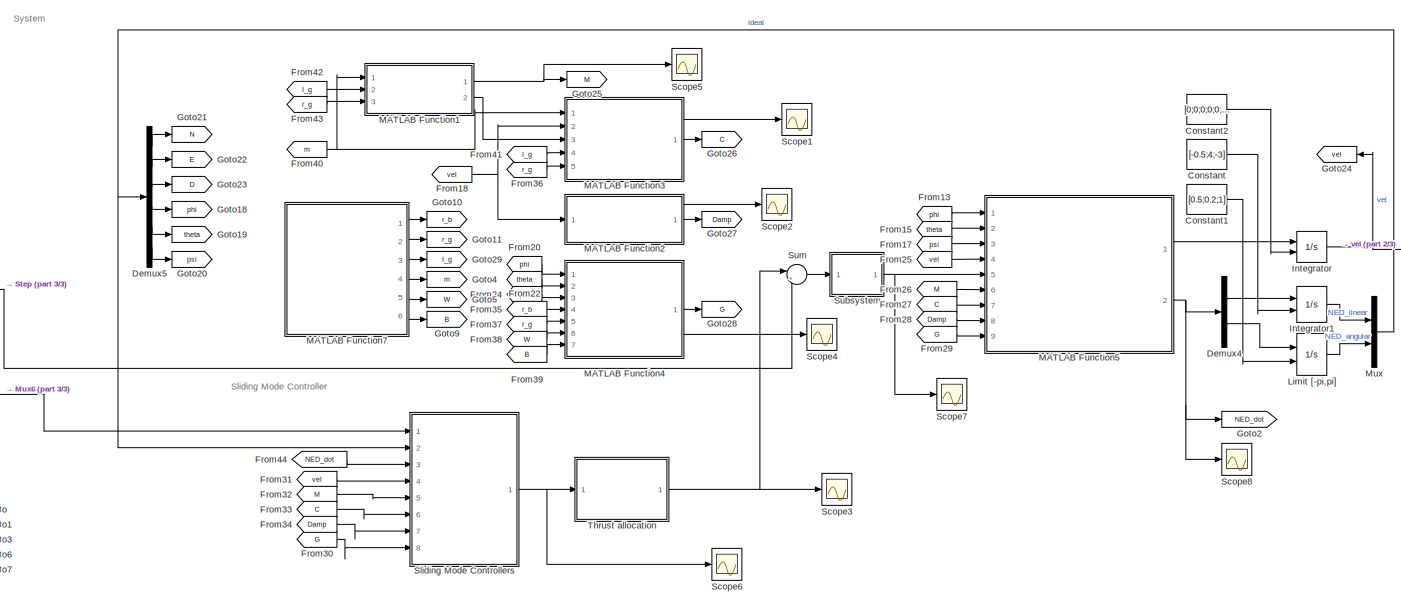
[diagram: root canvas - part 1/3, center side, full height]
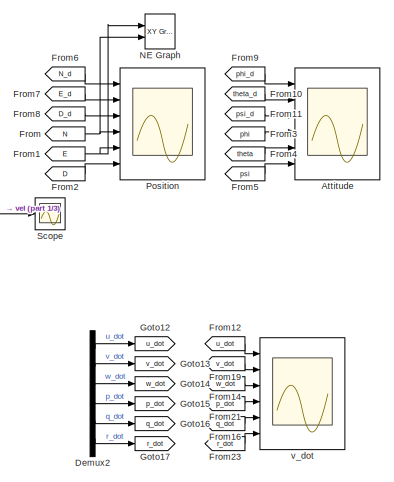
[diagram: root canvas - part 2/3, right side, full height]
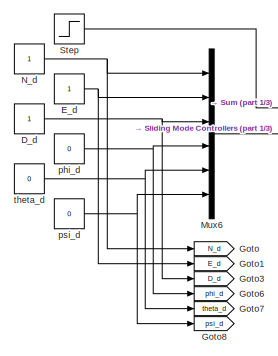
[diagram: root canvas - part 3/3, bottom left region]
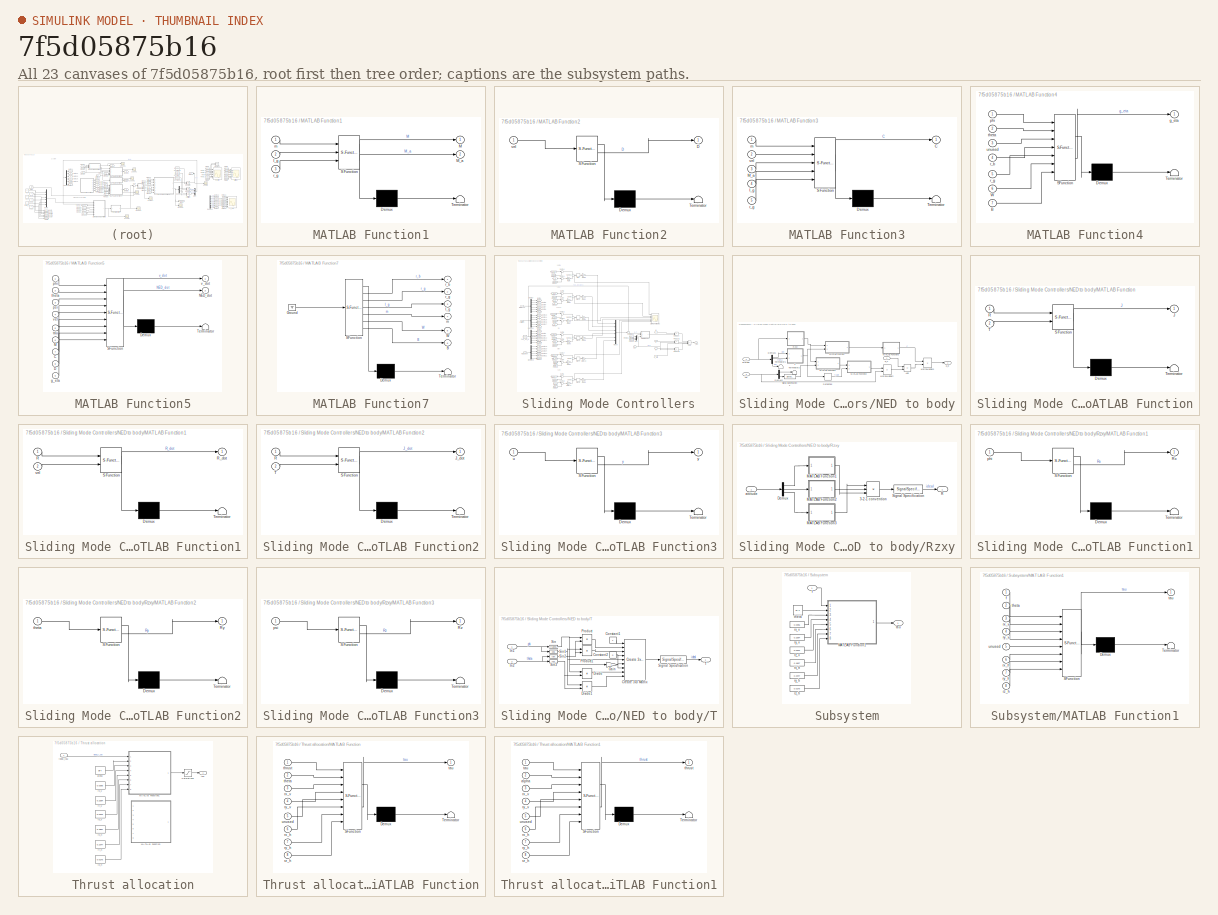
[diagram: thumbnail index - all 23 canvases of the model, root first then tree order]
MODEL slx_7f5d05875b16
KIND model
CONFIG AbsTol = auto
CONFIG EnableMultiTasking = off
CONFIG FixedStep = 0.01
CONFIG MaxStep = auto
CONFIG MinStep = auto
CONFIG RelTol = 1e-3
CONFIG SampleTimeConstraint = Unconstrained
CONFIG Solver = ode1
CONFIG SolverName = ode1
CONFIG StartTime = 0.0
CONFIG StopTime = 50
WORKSPACE source: mxarray member
WORKSPACE kd = 0
WORKSPACE kp = 0
BLOCK [Scope] Attitude
  Floating = off
  NumInputPorts = 6
  Ports = [6]
  ScopeSpecificationString = Simulink.scopes.TimeScopeBlockCfg('CurrentConfiguration', extmgr.ConfigurationSet(extmgr.Configuration('Core','General UI',true),extmgr.Configuration('Core','Source UI',true),extmgr.Configuration('Sources','WiredSimulink',true,'DataLoggingVariableName','ScopeData1'),extmgr.Configuration('Visuals','Time Domain',true,'SerializedDisplays',{struct('MinYLimReal','-1.08781','MaxYLimReal','1.23198','YLab...<+1661ch>
BLOCK [Constant] Constant
  Value = [-0.5;4;-3]
BLOCK [Constant] Constant1
  Value = [0.5;0.2;1]
BLOCK [Constant] Constant2
  Value = [0;0;0;0;0;0]
BLOCK [Constant] D_d
BLOCK [Demux] Demux2
  Commented = on
  Outputs = 6
  Ports = [1, 6]
BLOCK [Demux] Demux4
  Outputs = 2
  Ports = [1, 2]
BLOCK [Demux] Demux5
  Outputs = 6
  Ports = [1, 6]
BLOCK [Constant] E_d
BLOCK [From] From
  GotoTag = N
BLOCK [From] From1
  GotoTag = E
BLOCK [From] From10
  GotoTag = theta_d
BLOCK [From] From11
  GotoTag = psi_d
BLOCK [From] From12
  Commented = on
  GotoTag = u_dot
BLOCK [From] From13
  GotoTag = phi
BLOCK [From] From14
  Commented = on
  GotoTag = w_dot
BLOCK [From] From15
  GotoTag = theta
BLOCK [From] From16
  Commented = on
  GotoTag = q_dot
BLOCK [From] From17
  GotoTag = psi
BLOCK [From] From18
  GotoTag = vel
BLOCK [From] From19
  Commented = on
  GotoTag = v_dot
BLOCK [From] From2
  GotoTag = D
BLOCK [From] From20
  GotoTag = phi
BLOCK [From] From21
  Commented = on
  GotoTag = p_dot
BLOCK [From] From22
  GotoTag = theta
BLOCK [From] From23
  Commented = on
  GotoTag = r_dot
BLOCK [From] From24
  GotoTag = psi
BLOCK [From] From25
  GotoTag = vel
BLOCK [From] From26
  GotoTag = M
BLOCK [From] From27
  GotoTag = C
BLOCK [From] From28
  GotoTag = Damp
BLOCK [From] From29
  GotoTag = G
BLOCK [From] From3
  GotoTag = phi
BLOCK [From] From30
  GotoTag = G
BLOCK [From] From31
  GotoTag = vel
BLOCK [From] From32
  GotoTag = M
BLOCK [From] From33
  GotoTag = C
BLOCK [From] From34
  GotoTag = Damp
BLOCK [From] From35
  GotoTag = r_b
BLOCK [From] From36
  GotoTag = r_g
BLOCK [From] From37
  GotoTag = r_g
BLOCK [From] From38
  GotoTag = W
BLOCK [From] From39
  GotoTag = B
BLOCK [From] From4
  GotoTag = theta
BLOCK [From] From40
  GotoTag = m
BLOCK [From] From41
  GotoTag = I_g
BLOCK [From] From42
  GotoTag = I_g
BLOCK [From] From43
  GotoTag = r_g
BLOCK [From] From44
  GotoTag = NED_dot
BLOCK [From] From5
  GotoTag = psi
BLOCK [From] From6
  GotoTag = N_d
BLOCK [From] From7
  GotoTag = E_d
BLOCK [From] From8
  GotoTag = D_d
BLOCK [From] From9
  GotoTag = phi_d
BLOCK [Goto] Goto
  GotoTag = N_d
BLOCK [Goto] Goto1
  GotoTag = E_d
BLOCK [Goto] Goto10
  GotoTag = r_b
BLOCK [Goto] Goto11
  GotoTag = r_g
BLOCK [Goto] Goto12
  Commented = on
  GotoTag = u_dot
BLOCK [Goto] Goto13
  Commented = on
  GotoTag = v_dot
BLOCK [Goto] Goto14
  Commented = on
  GotoTag = w_dot
BLOCK [Goto] Goto15
  Commented = on
  GotoTag = p_dot
BLOCK [Goto] Goto16
  Commented = on
  GotoTag = q_dot
BLOCK [Goto] Goto17
  Commented = on
  GotoTag = r_dot
BLOCK [Goto] Goto18
  GotoTag = phi
BLOCK [Goto] Goto19
  GotoTag = theta
BLOCK [Goto] Goto2
  GotoTag = NED_dot
BLOCK [Goto] Goto20
  GotoTag = psi
BLOCK [Goto] Goto21
  GotoTag = N
BLOCK [Goto] Goto22
  GotoTag = E
BLOCK [Goto] Goto23
  GotoTag = D
BLOCK [Goto] Goto24
  GotoTag = vel
  NameLocation = top
BLOCK [Goto] Goto25
  GotoTag = M
BLOCK [Goto] Goto26
  GotoTag = C
BLOCK [Goto] Goto27
  GotoTag = Damp
BLOCK [Goto] Goto28
  GotoTag = G
BLOCK [Goto] Goto29
  GotoTag = I_g
BLOCK [Goto] Goto3
  GotoTag = D_d
BLOCK [Goto] Goto4
  GotoTag = m
BLOCK [Goto] Goto5
  GotoTag = W
BLOCK [Goto] Goto6
  GotoTag = phi_d
BLOCK [Goto] Goto7
  GotoTag = theta_d
BLOCK [Goto] Goto8
  GotoTag = psi_d
BLOCK [Goto] Goto9
  GotoTag = B
BLOCK [Integrator] Integrator
  InitialConditionSource = external
  Ports = [2, 1]
BLOCK [Integrator] Integrator1
  InitialConditionSource = external
  Ports = [2, 1]
BLOCK [Integrator] Limit [-pi,pi]
  InitialConditionSource = external
  Ports = [2, 1]
  WrapState = on
BLOCK [SubSystem] MATLAB Function1
  ErrorFcn = Stateflow.Translate.translate
  PermitHierarchicalResolution = ExplicitOnly
  Ports = [3, 2]
  RequestExecContextInheritance = off
  SFBlockType = MATLAB Function
  TreatAsAtomicUnit = on
BLOCK [Demux] MATLAB Function1/ Demux 
  Outputs = 1
  Ports = [1, 1]
BLOCK [S-Function] MATLAB Function1/ SFunction 
  EnableBusSupport = on
  FunctionName = sf_sfun
  PortCounts = [3 3]
  Ports = [3, 3]
  SFcnIsStateOwnerBlock = off
  SFunctionDeploymentMode = off
  Tag = Stateflow S-Function 2
BLOCK [Terminator] MATLAB Function1/ Terminator 
BLOCK [Inport] MATLAB Function1/I_g
  Port = 2
BLOCK [Outport] MATLAB Function1/M
BLOCK [Outport] MATLAB Function1/M_a
  Port = 2
BLOCK [Inport] MATLAB Function1/m
BLOCK [Inport] MATLAB Function1/r_g
  Port = 3
BLOCK [SubSystem] MATLAB Function2
  ErrorFcn = Stateflow.Translate.translate
  PermitHierarchicalResolution = ExplicitOnly
  Ports = [1, 1]
  RequestExecContextInheritance = off
  SFBlockType = MATLAB Function
  TreatAsAtomicUnit = on
BLOCK [Demux] MATLAB Function2/ Demux 
  Outputs = 1
  Ports = [1, 1]
BLOCK [S-Function] MATLAB Function2/ SFunction 
  EnableBusSupport = on
  FunctionName = sf_sfun
  PortCounts = [1 2]
  Ports = [1, 2]
  SFcnIsStateOwnerBlock = off
  SFunctionDeploymentMode = off
  Tag = Stateflow S-Function 12
BLOCK [Terminator] MATLAB Function2/ Terminator 
BLOCK [Outport] MATLAB Function2/D
BLOCK [Inport] MATLAB Function2/vel
BLOCK [SubSystem] MATLAB Function3
  ErrorFcn = Stateflow.Translate.translate
  PermitHierarchicalResolution = ExplicitOnly
  Ports = [5, 1]
  RequestExecContextInheritance = off
  SFBlockType = MATLAB Function
  TreatAsAtomicUnit = on
BLOCK [Demux] MATLAB Function3/ Demux 
  Outputs = 1
  Ports = [1, 1]
BLOCK [S-Function] MATLAB Function3/ SFunction 
  EnableBusSupport = on
  FunctionName = sf_sfun
  PortCounts = [5 2]
  Ports = [5, 2]
  SFcnIsStateOwnerBlock = off
  SFunctionDeploymentMode = off
  Tag = Stateflow S-Function 13
BLOCK [Terminator] MATLAB Function3/ Terminator 
BLOCK [Outport] MATLAB Function3/C
BLOCK [Inport] MATLAB Function3/I_g
  Port = 4
BLOCK [Inport] MATLAB Function3/M_a
  Port = 3
BLOCK [Inport] MATLAB Function3/m
BLOCK [Inport] MATLAB Function3/r_g
  Port = 5
BLOCK [Inport] MATLAB Function3/vel
  Port = 2
BLOCK [SubSystem] MATLAB Function4
  ErrorFcn = Stateflow.Translate.translate
  PermitHierarchicalResolution = ExplicitOnly
  Ports = [7, 1]
  RequestExecContextInheritance = off
  SFBlockType = MATLAB Function
  TreatAsAtomicUnit = on
BLOCK [Demux] MATLAB Function4/ Demux 
  Outputs = 1
  Ports = [1, 1]
BLOCK [S-Function] MATLAB Function4/ SFunction 
  EnableBusSupport = on
  FunctionName = sf_sfun
  PortCounts = [7 2]
  Ports = [7, 2]
  SFcnIsStateOwnerBlock = off
  SFunctionDeploymentMode = off
  Tag = Stateflow S-Function 14
BLOCK [Terminator] MATLAB Function4/ Terminator 
BLOCK [Inport] MATLAB Function4/B
  Port = 7
BLOCK [Inport] MATLAB Function4/W
  Port = 6
BLOCK [Outport] MATLAB Function4/g_eta
BLOCK [Inport] MATLAB Function4/phi
BLOCK [Inport] MATLAB Function4/r_b
  Port = 4
BLOCK [Inport] MATLAB Function4/r_g
  Port = 5
BLOCK [Inport] MATLAB Function4/theta
  Port = 2
BLOCK [Inport] MATLAB Function4/unused
  Port = 3
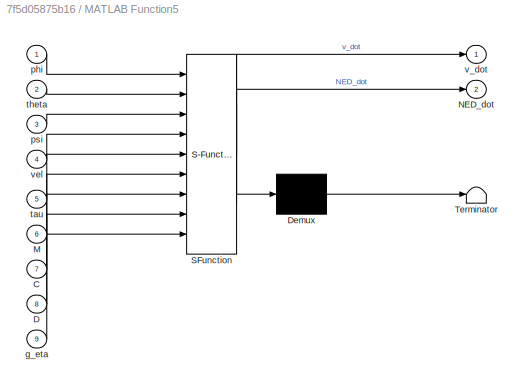
BLOCK [SubSystem] MATLAB Function5
  ErrorFcn = Stateflow.Translate.translate
  PermitHierarchicalResolution = ExplicitOnly
  Ports = [9, 2]
  RequestExecContextInheritance = off
  SFBlockType = MATLAB Function
  TreatAsAtomicUnit = on
BLOCK [Demux] MATLAB Function5/ Demux 
  Outputs = 1
  Ports = [1, 1]
BLOCK [S-Function] MATLAB Function5/ SFunction 
  EnableBusSupport = on
  FunctionName = sf_sfun
  PortCounts = [9 3]
  Ports = [9, 3]
  SFcnIsStateOwnerBlock = off
  SFunctionDeploymentMode = off
  Tag = Stateflow S-Function 15
BLOCK [Terminator] MATLAB Function5/ Terminator 
BLOCK [Inport] MATLAB Function5/C
  Port = 7
BLOCK [Inport] MATLAB Function5/D
  Port = 8
BLOCK [Inport] MATLAB Function5/M
  Port = 6
BLOCK [Outport] MATLAB Function5/NED_dot
  Port = 2
BLOCK [Inport] MATLAB Function5/g_eta
  Port = 9
BLOCK [Inport] MATLAB Function5/phi
BLOCK [Inport] MATLAB Function5/psi
  Port = 3
BLOCK [Inport] MATLAB Function5/tau
  Port = 5
BLOCK [Inport] MATLAB Function5/theta
  Port = 2
BLOCK [Outport] MATLAB Function5/v_dot
BLOCK [Inport] MATLAB Function5/vel
  Port = 4
BLOCK [SubSystem] MATLAB Function7
  ErrorFcn = Stateflow.Translate.translate
  PermitHierarchicalResolution = ExplicitOnly
  Ports = [0, 6]
  RequestExecContextInheritance = off
  SFBlockType = MATLAB Function
  TreatAsAtomicUnit = on
BLOCK [Demux] MATLAB Function7/ Demux 
  Outputs = 1
  Ports = [1, 1]
BLOCK [Ground] MATLAB Function7/ Ground 
BLOCK [S-Function] MATLAB Function7/ SFunction 
  EnableBusSupport = on
  FunctionName = sf_sfun
  PortCounts = [1 7]
  Ports = [1, 7]
  SFcnIsStateOwnerBlock = off
  SFunctionDeploymentMode = off
  Tag = Stateflow S-Function 17
BLOCK [Terminator] MATLAB Function7/ Terminator 
BLOCK [Outport] MATLAB Function7/B
  Port = 6
BLOCK [Outport] MATLAB Function7/I_g
  Port = 3
BLOCK [Outport] MATLAB Function7/W
  Port = 5
BLOCK [Outport] MATLAB Function7/m
  Port = 4
BLOCK [Outport] MATLAB Function7/r_b
BLOCK [Outport] MATLAB Function7/r_g
  Port = 2
BLOCK [Mux] Mux
  DisplayOption = bar
  Inputs = 2
  Ports = [2, 1]
BLOCK [Mux] Mux6
  DisplayOption = bar
  Inputs = 6
  Ports = [6, 1]
BLOCK [Reference] NE Graph  REF=simulink/Sinks/XY Graph
  Ports = [2]
  SourceBlock = simulink/Sinks/XY Graph
  SourceProductBaseCode = SL
  SourceType = XY scope.
BLOCK [Constant] N_d
BLOCK [Scope] Position
  Floating = off
  NumInputPorts = 6
  Ports = [6]
  ScopeSpecificationString = Simulink.scopes.TimeScopeBlockCfg('CurrentConfiguration', extmgr.ConfigurationSet(extmgr.Configuration('Core','General UI',true),extmgr.Configuration('Core','Source UI',true),extmgr.Configuration('Sources','WiredSimulink',true),extmgr.Configuration('Visuals','Time Domain',true,'SerializedDisplays',{struct('MinYLimReal','-3.875','MaxYLimReal','4.875','YLabelReal','','MinYLimMag','0.00000','MaxYLimM...<+1569ch>
BLOCK [Scope] Scope
  Floating = off
  NumInputPorts = 1
  Ports = [1]
  ScopeSpecificationString = Simulink.scopes.TimeScopeBlockCfg('CurrentConfiguration', extmgr.ConfigurationSet(extmgr.Configuration('Core','General UI',true),extmgr.Configuration('Core','Source UI',true),extmgr.Configuration('Sources','WiredSimulink',true,'DataLoggingVariableName','ScopeData1'),extmgr.Configuration('Visuals','Time Domain',true,'SerializedDisplays',{struct('MinYLimReal','-3.38519','MaxYLimReal','2.94263','YLab...<+1692ch>
BLOCK [Scope] Scope1
  Floating = off
  NumInputPorts = 1
  Ports = [1]
  ScopeSpecificationString = Simulink.scopes.TimeScopeBlockCfg('CurrentConfiguration', extmgr.ConfigurationSet(extmgr.Configuration('Core','General UI',true),extmgr.Configuration('Core','Source UI',true),extmgr.Configuration('Sources','WiredSimulink',true,'DataLoggingVariableName','ScopeData1'),extmgr.Configuration('Visuals','Time Domain',true,'SerializedDisplays',{struct('MinYLimReal','-9.38603','MaxYLimReal','9.38603','YLab...<+2198ch>
BLOCK [Scope] Scope2
  Floating = off
  NumInputPorts = 1
  Ports = [1]
  ScopeSpecificationString = Simulink.scopes.TimeScopeBlockCfg('CurrentConfiguration', extmgr.ConfigurationSet(extmgr.Configuration('Core','General UI',true),extmgr.Configuration('Core','Source UI',true),extmgr.Configuration('Sources','WiredSimulink',true,'DataLoggingVariableName','ScopeData2'),extmgr.Configuration('Visuals','Time Domain',true,'SerializedDisplays',{struct('MinYLimReal','-13.16749','MaxYLimReal','117.98944','Y...<+3000ch>
BLOCK [Scope] Scope3
  Floating = off
  NumInputPorts = 1
  Ports = [1]
  ScopeSpecificationString = Simulink.scopes.TimeScopeBlockCfg('CurrentConfiguration', extmgr.ConfigurationSet(extmgr.Configuration('Core','General UI',true),extmgr.Configuration('Core','Source UI',true),extmgr.Configuration('Sources','WiredSimulink',true,'DataLoggingVariableName','ScopeData1'),extmgr.Configuration('Visuals','Time Domain',true,'SerializedDisplays',{struct('MinYLimReal','-43.75','MaxYLimReal','43.75','YLabelRe...<+1599ch>
BLOCK [Scope] Scope4
  Floating = off
  NumInputPorts = 1
  Ports = [1]
  ScopeSpecificationString = Simulink.scopes.TimeScopeBlockCfg('CurrentConfiguration', extmgr.ConfigurationSet(extmgr.Configuration('Core','General UI',true),extmgr.Configuration('Core','Source UI',true),extmgr.Configuration('Sources','WiredSimulink',true,'DataLoggingVariableName','ScopeData3'),extmgr.Configuration('Visuals','Time Domain',true,'SerializedDisplays',{struct('MinYLimReal','-22.87254','MaxYLimReal','15.79147','YL...<+1544ch>
BLOCK [Scope] Scope5
  Floating = off
  NumInputPorts = 1
  Ports = [1]
  ScopeSpecificationString = Simulink.scopes.TimeScopeBlockCfg('CurrentConfiguration', extmgr.ConfigurationSet(extmgr.Configuration('Core','General UI',true),extmgr.Configuration('Core','Source UI',true),extmgr.Configuration('Sources','WiredSimulink',true,'DataLoggingVariableName','ScopeData4'),extmgr.Configuration('Visuals','Time Domain',true,'SerializedDisplays',{struct('MinYLimReal','-7.41496','MaxYLimReal','66.73277','YLa...<+2241ch>
BLOCK [Scope] Scope6
  Floating = off
  NumInputPorts = 1
  Ports = [1]
  ScopeSpecificationString = Simulink.scopes.TimeScopeBlockCfg('CurrentConfiguration', extmgr.ConfigurationSet(extmgr.Configuration('Core','General UI',true),extmgr.Configuration('Core','Source UI',true),extmgr.Configuration('Sources','WiredSimulink',true,'DataLoggingVariableName','ScopeData1'),extmgr.Configuration('Visuals','Time Domain',true,'SerializedDisplays',{struct('MinYLimReal','-429.66145','MaxYLimReal','437.22498','...<+1756ch>
BLOCK [Scope] Scope7
  Floating = off
  NumInputPorts = 1
  Ports = [1]
  ScopeSpecificationString = Simulink.scopes.TimeScopeBlockCfg('CurrentConfiguration', extmgr.ConfigurationSet(extmgr.Configuration('Core','General UI',true),extmgr.Configuration('Core','Source UI',true),extmgr.Configuration('Sources','WiredSimulink',true,'DataLoggingVariableName','ScopeData2'),extmgr.Configuration('Visuals','Time Domain',true,'SerializedDisplays',{struct('MinYLimReal','-123.74369','MaxYLimReal','123.74369','...<+1666ch>
BLOCK [Scope] Scope8
  Floating = off
  NumInputPorts = 1
  Ports = [1]
  ScopeSpecificationString = Simulink.scopes.TimeScopeBlockCfg('CurrentConfiguration', extmgr.ConfigurationSet(extmgr.Configuration('Core','General UI',true),extmgr.Configuration('Core','Source UI',true),extmgr.Configuration('Sources','WiredSimulink',true,'DataLoggingVariableName','ScopeData3'),extmgr.Configuration('Visuals','Time Domain',true,'SerializedDisplays',{struct('MinYLimReal','-3.39212','MaxYLimReal','3.00532','YLab...<+1743ch>
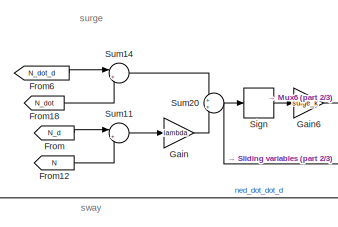
[diagram: Sliding Mode Controllers - part 1/3, top left region]
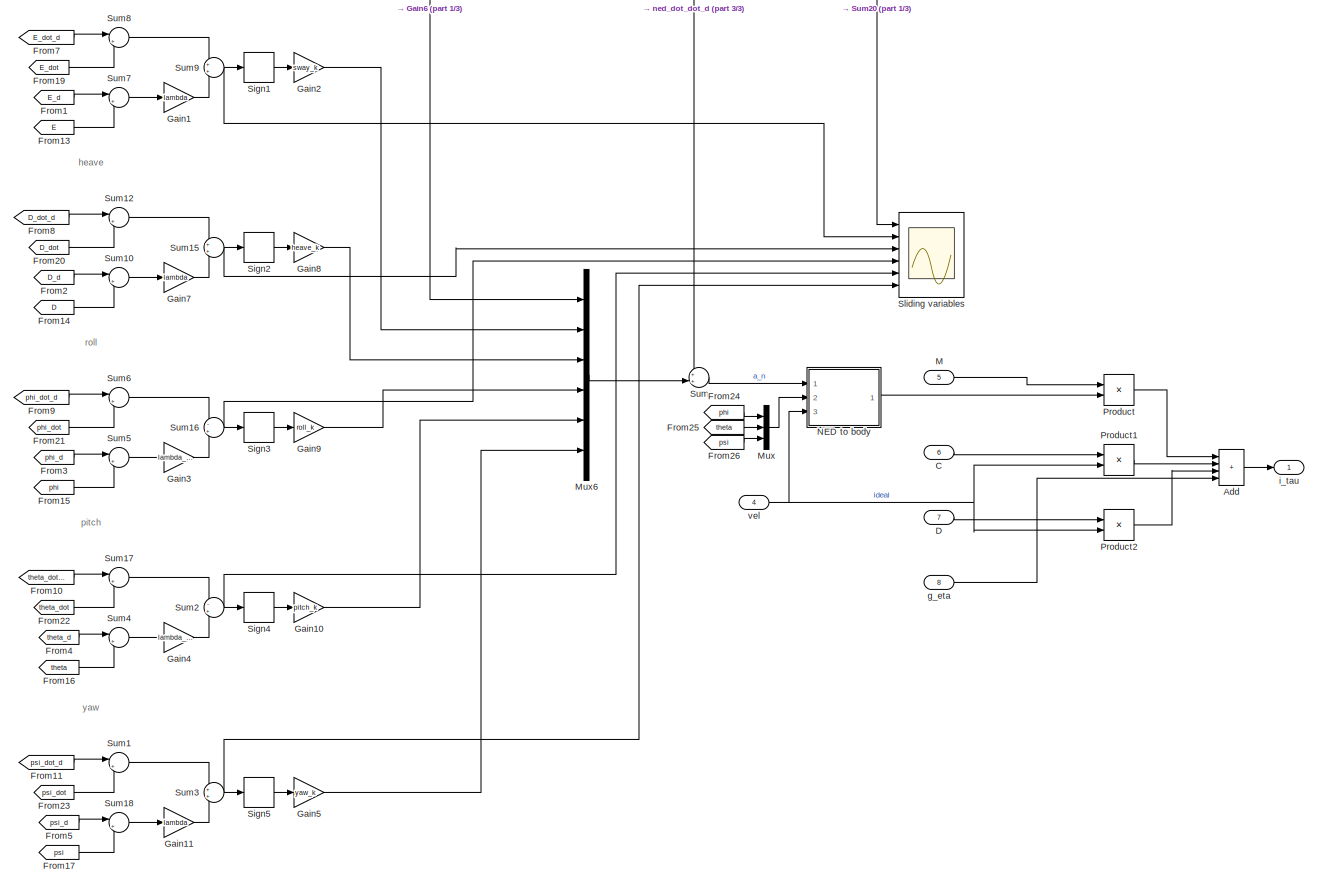
[diagram: Sliding Mode Controllers - part 2/3, most of the canvas]
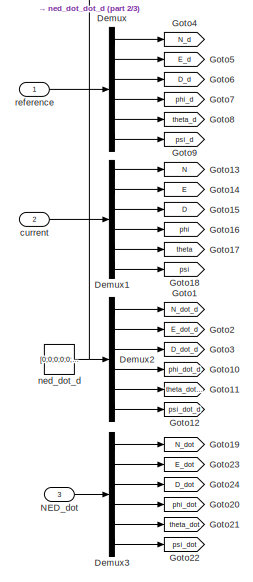
[diagram: Sliding Mode Controllers - part 3/3, middle left region]
BLOCK [SubSystem] Sliding Mode Controllers
  Ports = [8, 1]
  RequestExecContextInheritance = off
BLOCK [Sum] Sliding Mode Controllers/Add
  IconShape = rectangular
  Inputs = 4
  Ports = [4, 1]
BLOCK [Inport] Sliding Mode Controllers/C
  Port = 6
BLOCK [Inport] Sliding Mode Controllers/D
  Port = 7
BLOCK [Demux] Sliding Mode Controllers/Demux
  Outputs = 6
  Ports = [1, 6]
BLOCK [Demux] Sliding Mode Controllers/Demux1
  Outputs = 6
  Ports = [1, 6]
BLOCK [Demux] Sliding Mode Controllers/Demux2
  Outputs = 6
  Ports = [1, 6]
BLOCK [Demux] Sliding Mode Controllers/Demux3
  Outputs = 6
  Ports = [1, 6]
BLOCK [From] Sliding Mode Controllers/From
  GotoTag = N_d
BLOCK [From] Sliding Mode Controllers/From1
  GotoTag = E_d
BLOCK [From] Sliding Mode Controllers/From10
  GotoTag = theta_dot_d
BLOCK [From] Sliding Mode Controllers/From11
  GotoTag = psi_dot_d
BLOCK [From] Sliding Mode Controllers/From12
  GotoTag = N
BLOCK [From] Sliding Mode Controllers/From13
  GotoTag = E
BLOCK [From] Sliding Mode Controllers/From14
  GotoTag = D
BLOCK [From] Sliding Mode Controllers/From15
  GotoTag = phi
BLOCK [From] Sliding Mode Controllers/From16
  GotoTag = theta
BLOCK [From] Sliding Mode Controllers/From17
  GotoTag = psi
BLOCK [From] Sliding Mode Controllers/From18
  GotoTag = N_dot
BLOCK [From] Sliding Mode Controllers/From19
  GotoTag = E_dot
BLOCK [From] Sliding Mode Controllers/From2
  GotoTag = D_d
BLOCK [From] Sliding Mode Controllers/From20
  GotoTag = D_dot
BLOCK [From] Sliding Mode Controllers/From21
  GotoTag = phi_dot
BLOCK [From] Sliding Mode Controllers/From22
  GotoTag = theta_dot
BLOCK [From] Sliding Mode Controllers/From23
  GotoTag = psi_dot
BLOCK [From] Sliding Mode Controllers/From24
  GotoTag = phi
BLOCK [From] Sliding Mode Controllers/From25
  GotoTag = theta
BLOCK [From] Sliding Mode Controllers/From26
  GotoTag = psi
BLOCK [From] Sliding Mode Controllers/From3
  GotoTag = phi_d
BLOCK [From] Sliding Mode Controllers/From4
  GotoTag = theta_d
BLOCK [From] Sliding Mode Controllers/From5
  GotoTag = psi_d
BLOCK [From] Sliding Mode Controllers/From6
  GotoTag = N_dot_d
BLOCK [From] Sliding Mode Controllers/From7
  GotoTag = E_dot_d
BLOCK [From] Sliding Mode Controllers/From8
  GotoTag = D_dot_d
BLOCK [From] Sliding Mode Controllers/From9
  GotoTag = phi_dot_d
BLOCK [Gain] Sliding Mode Controllers/Gain
  Gain = lambda
BLOCK [Gain] Sliding Mode Controllers/Gain1
  Gain = lambda
BLOCK [Gain] Sliding Mode Controllers/Gain10
  Gain = pitch_k
BLOCK [Gain] Sliding Mode Controllers/Gain11
  Gain = lambda
BLOCK [Gain] Sliding Mode Controllers/Gain2
  Gain = sway_k
BLOCK [Gain] Sliding Mode Controllers/Gain3
  Gain = lambda_roll
BLOCK [Gain] Sliding Mode Controllers/Gain4
  Gain = lambda_pitch
BLOCK [Gain] Sliding Mode Controllers/Gain5
  Gain = yaw_k
BLOCK [Gain] Sliding Mode Controllers/Gain6
  Gain = surge_k
BLOCK [Gain] Sliding Mode Controllers/Gain7
  Gain = lambda
BLOCK [Gain] Sliding Mode Controllers/Gain8
  Gain = heave_k
BLOCK [Gain] Sliding Mode Controllers/Gain9
  Gain = roll_k
BLOCK [Goto] Sliding Mode Controllers/Goto1
  GotoTag = N_dot_d
BLOCK [Goto] Sliding Mode Controllers/Goto10
  GotoTag = phi_dot_d
BLOCK [Goto] Sliding Mode Controllers/Goto11
  GotoTag = theta_dot_d
BLOCK [Goto] Sliding Mode Controllers/Goto12
  GotoTag = psi_dot_d
BLOCK [Goto] Sliding Mode Controllers/Goto13
  GotoTag = N
BLOCK [Goto] Sliding Mode Controllers/Goto14
  GotoTag = E
BLOCK [Goto] Sliding Mode Controllers/Goto15
  GotoTag = D
BLOCK [Goto] Sliding Mode Controllers/Goto16
  GotoTag = phi
BLOCK [Goto] Sliding Mode Controllers/Goto17
  GotoTag = theta
BLOCK [Goto] Sliding Mode Controllers/Goto18
  GotoTag = psi
BLOCK [Goto] Sliding Mode Controllers/Goto19
  GotoTag = N_dot
BLOCK [Goto] Sliding Mode Controllers/Goto2
  GotoTag = E_dot_d
BLOCK [Goto] Sliding Mode Controllers/Goto20
  GotoTag = phi_dot
BLOCK [Goto] Sliding Mode Controllers/Goto21
  GotoTag = theta_dot
BLOCK [Goto] Sliding Mode Controllers/Goto22
  GotoTag = psi_dot
BLOCK [Goto] Sliding Mode Controllers/Goto23
  GotoTag = E_dot
BLOCK [Goto] Sliding Mode Controllers/Goto24
  GotoTag = D_dot
BLOCK [Goto] Sliding Mode Controllers/Goto3
  GotoTag = D_dot_d
BLOCK [Goto] Sliding Mode Controllers/Goto4
  GotoTag = N_d
BLOCK [Goto] Sliding Mode Controllers/Goto5
  GotoTag = E_d
BLOCK [Goto] Sliding Mode Controllers/Goto6
  GotoTag = D_d
BLOCK [Goto] Sliding Mode Controllers/Goto7
  GotoTag = phi_d
BLOCK [Goto] Sliding Mode Controllers/Goto8
  GotoTag = theta_d
BLOCK [Goto] Sliding Mode Controllers/Goto9
  GotoTag = psi_d
BLOCK [Inport] Sliding Mode Controllers/M
  Port = 5
BLOCK [Mux] Sliding Mode Controllers/Mux
  DisplayOption = bar
  Inputs = 3
  Ports = [3, 1]
BLOCK [Mux] Sliding Mode Controllers/Mux6
  DisplayOption = bar
  Inputs = 6
  Ports = [6, 1]
BLOCK [SubSystem] Sliding Mode Controllers/NED to body
  Ports = [3, 1]
  RequestExecContextInheritance = off
BLOCK [Sum] Sliding Mode Controllers/NED to body/Add
  IconShape = rectangular
  Inputs = +-
  Ports = [2, 1]
BLOCK [Demux] Sliding Mode Controllers/NED to body/Demux1
  Outputs = 3
  Ports = [1, 3]
BLOCK [Demux] Sliding Mode Controllers/NED to body/Demux2
  Outputs = 2
  Ports = [1, 2]
BLOCK [Derivative] Sliding Mode Controllers/NED to body/Derivative
BLOCK [SubSystem] Sliding Mode Controllers/NED to body/MATLAB Function
  ErrorFcn = Stateflow.Translate.translate
  PermitHierarchicalResolution = ExplicitOnly
  Ports = [2, 1]
  RequestExecContextInheritance = off
  SFBlockType = MATLAB Function
  TreatAsAtomicUnit = on
BLOCK [Demux] Sliding Mode Controllers/NED to body/MATLAB Function/ Demux 
  Outputs = 1
  Ports = [1, 1]
BLOCK [S-Function] Sliding Mode Controllers/NED to body/MATLAB Function/ SFunction 
  EnableBusSupport = on
  FunctionName = sf_sfun
  PortCounts = [2 2]
  Ports = [2, 2]
  SFcnIsStateOwnerBlock = off
  SFunctionDeploymentMode = off
  Tag = Stateflow S-Function 4
BLOCK [Terminator] Sliding Mode Controllers/NED to body/MATLAB Function/ Terminator 
BLOCK [Outport] Sliding Mode Controllers/NED to body/MATLAB Function/J
BLOCK [Inport] Sliding Mode Controllers/NED to body/MATLAB Function/R
BLOCK [Inport] Sliding Mode Controllers/NED to body/MATLAB Function/T
  Port = 2
BLOCK [SubSystem] Sliding Mode Controllers/NED to body/MATLAB Function1
  ErrorFcn = Stateflow.Translate.translate
  PermitHierarchicalResolution = ExplicitOnly
  Ports = [2, 1]
  RequestExecContextInheritance = off
  SFBlockType = MATLAB Function
  TreatAsAtomicUnit = on
BLOCK [Demux] Sliding Mode Controllers/NED to body/MATLAB Function1/ Demux 
  Outputs = 1
  Ports = [1, 1]
BLOCK [S-Function] Sliding Mode Controllers/NED to body/MATLAB Function1/ SFunction 
  EnableBusSupport = on
  FunctionName = sf_sfun
  PortCounts = [2 2]
  Ports = [2, 2]
  SFcnIsStateOwnerBlock = off
  SFunctionDeploymentMode = off
  Tag = Stateflow S-Function 8
BLOCK [Terminator] Sliding Mode Controllers/NED to body/MATLAB Function1/ Terminator 
BLOCK [Inport] Sliding Mode Controllers/NED to body/MATLAB Function1/R
BLOCK [Outport] Sliding Mode Controllers/NED to body/MATLAB Function1/R_dot
BLOCK [Inport] Sliding Mode Controllers/NED to body/MATLAB Function1/vel
  Port = 2
BLOCK [SubSystem] Sliding Mode Controllers/NED to body/MATLAB Function2
  ErrorFcn = Stateflow.Translate.translate
  PermitHierarchicalResolution = ExplicitOnly
  Ports = [2, 1]
  RequestExecContextInheritance = off
  SFBlockType = MATLAB Function
  TreatAsAtomicUnit = on
BLOCK [Demux] Sliding Mode Controllers/NED to body/MATLAB Function2/ Demux 
  Outputs = 1
  Ports = [1, 1]
BLOCK [S-Function] Sliding Mode Controllers/NED to body/MATLAB Function2/ SFunction 
  EnableBusSupport = on
  FunctionName = sf_sfun
  PortCounts = [2 2]
  Ports = [2, 2]
  SFcnIsStateOwnerBlock = off
  SFunctionDeploymentMode = off
  Tag = Stateflow S-Function 9
BLOCK [Terminator] Sliding Mode Controllers/NED to body/MATLAB Function2/ Terminator 
BLOCK [Outport] Sliding Mode Controllers/NED to body/MATLAB Function2/J_dot
BLOCK [Inport] Sliding Mode Controllers/NED to body/MATLAB Function2/R
BLOCK [Inport] Sliding Mode Controllers/NED to body/MATLAB Function2/T
  Port = 2
BLOCK [SubSystem] Sliding Mode Controllers/NED to body/MATLAB Function3
  ErrorFcn = Stateflow.Translate.translate
  PermitHierarchicalResolution = ExplicitOnly
  Ports = [1, 1]
  RequestExecContextInheritance = off
  SFBlockType = MATLAB Function
  TreatAsAtomicUnit = on
BLOCK [Demux] Sliding Mode Controllers/NED to body/MATLAB Function3/ Demux 
  Outputs = 1
  Ports = [1, 1]
BLOCK [S-Function] Sliding Mode Controllers/NED to body/MATLAB Function3/ SFunction 
  EnableBusSupport = on
  FunctionName = sf_sfun
  PortCounts = [1 2]
  Ports = [1, 2]
  SFcnIsStateOwnerBlock = off
  SFunctionDeploymentMode = off
  Tag = Stateflow S-Function 10
BLOCK [Terminator] Sliding Mode Controllers/NED to body/MATLAB Function3/ Terminator 
BLOCK [Inport] Sliding Mode Controllers/NED to body/MATLAB Function3/u
BLOCK [Outport] Sliding Mode Controllers/NED to body/MATLAB Function3/y
BLOCK [Product] Sliding Mode Controllers/NED to body/MatrixMultiply2
  Multiplication = Matrix(*)
  Ports = [2, 1]
BLOCK [Product] Sliding Mode Controllers/NED to body/MatrixMultiply3
  Multiplication = Matrix(*)
  Ports = [2, 1]
BLOCK [SubSystem] Sliding Mode Controllers/NED to body/Rzxy
  Ports = [1, 1]
  RequestExecContextInheritance = off
BLOCK [Product] Sliding Mode Controllers/NED to body/Rzxy/3-2-1 convention
  Inputs = 3
  Multiplication = Matrix(*)
  Ports = [3, 1]
BLOCK [Demux] Sliding Mode Controllers/NED to body/Rzxy/Demux
  Outputs = 3
  Ports = [1, 3]
BLOCK [SubSystem] Sliding Mode Controllers/NED to body/Rzxy/MATLAB Function1
  ErrorFcn = Stateflow.Translate.translate
  PermitHierarchicalResolution = ExplicitOnly
  Ports = [1, 1]
  RequestExecContextInheritance = off
  SFBlockType = MATLAB Function
  TreatAsAtomicUnit = on
BLOCK [Demux] Sliding Mode Controllers/NED to body/Rzxy/MATLAB Function1/ Demux 
  Outputs = 1
  Ports = [1, 1]
BLOCK [S-Function] Sliding Mode Controllers/NED to body/Rzxy/MATLAB Function1/ SFunction 
  EnableBusSupport = on
  FunctionName = sf_sfun
  PortCounts = [1 2]
  Ports = [1, 2]
  SFcnIsStateOwnerBlock = off
  SFunctionDeploymentMode = off
  Tag = Stateflow S-Function 1
BLOCK [Terminator] Sliding Mode Controllers/NED to body/Rzxy/MATLAB Function1/ Terminator 
BLOCK [Outport] Sliding Mode Controllers/NED to body/Rzxy/MATLAB Function1/Rx
BLOCK [Inport] Sliding Mode Controllers/NED to body/Rzxy/MATLAB Function1/phi
BLOCK [SubSystem] Sliding Mode Controllers/NED to body/Rzxy/MATLAB Function2
  ErrorFcn = Stateflow.Translate.translate
  PermitHierarchicalResolution = ExplicitOnly
  Ports = [1, 1]
  RequestExecContextInheritance = off
  SFBlockType = MATLAB Function
  TreatAsAtomicUnit = on
BLOCK [Demux] Sliding Mode Controllers/NED to body/Rzxy/MATLAB Function2/ Demux 
  Outputs = 1
  Ports = [1, 1]
BLOCK [S-Function] Sliding Mode Controllers/NED to body/Rzxy/MATLAB Function2/ SFunction 
  EnableBusSupport = on
  FunctionName = sf_sfun
  PortCounts = [1 2]
  Ports = [1, 2]
  SFcnIsStateOwnerBlock = off
  SFunctionDeploymentMode = off
  Tag = Stateflow S-Function 6
BLOCK [Terminator] Sliding Mode Controllers/NED to body/Rzxy/MATLAB Function2/ Terminator 
BLOCK [Outport] Sliding Mode Controllers/NED to body/Rzxy/MATLAB Function2/Ry
BLOCK [Inport] Sliding Mode Controllers/NED to body/Rzxy/MATLAB Function2/theta
BLOCK [SubSystem] Sliding Mode Controllers/NED to body/Rzxy/MATLAB Function3
  ErrorFcn = Stateflow.Translate.translate
  PermitHierarchicalResolution = ExplicitOnly
  Ports = [1, 1]
  RequestExecContextInheritance = off
  SFBlockType = MATLAB Function
  TreatAsAtomicUnit = on
BLOCK [Demux] Sliding Mode Controllers/NED to body/Rzxy/MATLAB Function3/ Demux 
  Outputs = 1
  Ports = [1, 1]
BLOCK [S-Function] Sliding Mode Controllers/NED to body/Rzxy/MATLAB Function3/ SFunction 
  EnableBusSupport = on
  FunctionName = sf_sfun
  PortCounts = [1 2]
  Ports = [1, 2]
  SFcnIsStateOwnerBlock = off
  SFunctionDeploymentMode = off
  Tag = Stateflow S-Function 7
BLOCK [Terminator] Sliding Mode Controllers/NED to body/Rzxy/MATLAB Function3/ Terminator 
BLOCK [Outport] Sliding Mode Controllers/NED to body/Rzxy/MATLAB Function3/Rz
BLOCK [Inport] Sliding Mode Controllers/NED to body/Rzxy/MATLAB Function3/psi
BLOCK [Outport] Sliding Mode Controllers/NED to body/Rzxy/R
BLOCK [SignalSpecification] Sliding Mode Controllers/NED to body/Rzxy/Signal Specification
  Dimensions = [3,3]
  VarSizeSig = No
BLOCK [Inport] Sliding Mode Controllers/NED to body/Rzxy/attitude
BLOCK [SignalSpecification] Sliding Mode Controllers/NED to body/Signal Specification1
  Dimensions = 3
  VarSizeSig = No
BLOCK [SubSystem] Sliding Mode Controllers/NED to body/T
  Ports = [2, 1]
  RequestExecContextInheritance = off
BLOCK [Constant] Sliding Mode Controllers/NED to body/T/Constant1
BLOCK [Constant] Sliding Mode Controllers/NED to body/T/Constant2
  Value = 0
BLOCK [Reference] Sliding Mode Controllers/NED to body/T/Create 3x3 Matrix  REF=sharedutil/Create 3x3 Matrix
  Ports = [9, 1]
  SourceBlock = sharedutil/Create 3x3 Matrix
  SourceProductBaseCode = AE,PW,MT,VE,VP
  SourceType = Create 3x3 Matrix
BLOCK [Product] Sliding Mode Controllers/NED to body/T/Divide
  Inputs = */
  Ports = [2, 1]
BLOCK [Product] Sliding Mode Controllers/NED to body/T/Divide1
  Inputs = */
  Ports = [2, 1]
BLOCK [Gain] Sliding Mode Controllers/NED to body/T/Gain
  Gain = -1
BLOCK [Inport] Sliding Mode Controllers/NED to body/T/In1
BLOCK [Inport] Sliding Mode Controllers/NED to body/T/In2
  Port = 2
BLOCK [Product] Sliding Mode Controllers/NED to body/T/Product
  Ports = [2, 1]
BLOCK [Product] Sliding Mode Controllers/NED to body/T/Product1
  Ports = [2, 1]
BLOCK [SignalSpecification] Sliding Mode Controllers/NED to body/T/Signal Specification
  Dimensions = [3,3]
  VarSizeSig = No
BLOCK [Trigonometry] Sliding Mode Controllers/NED to body/T/Sin
  Ports = [1, 1]
BLOCK [Trigonometry] Sliding Mode Controllers/NED to body/T/Sin1
  Operator = cos
  Ports = [1, 1]
BLOCK [Trigonometry] Sliding Mode Controllers/NED to body/T/Sin2
  Operator = tan
  Ports = [1, 1]
BLOCK [Trigonometry] Sliding Mode Controllers/NED to body/T/Sin3
  Operator = cos
  Ports = [1, 1]
BLOCK [Outport] Sliding Mode Controllers/NED to body/T/T
BLOCK [Terminator] Sliding Mode Controllers/NED to body/Terminator1
BLOCK [Terminator] Sliding Mode Controllers/NED to body/Terminator2
BLOCK [Outport] Sliding Mode Controllers/NED to body/a_b
BLOCK [Inport] Sliding Mode Controllers/NED to body/a_n
BLOCK [Inport] Sliding Mode Controllers/NED to body/attitude
  Port = 2
BLOCK [Inport] Sliding Mode Controllers/NED to body/vel
  Port = 3
BLOCK [Inport] Sliding Mode Controllers/NED_dot
  Port = 3
BLOCK [Product] Sliding Mode Controllers/Product
  Multiplication = Matrix(*)
  Ports = [2, 1]
BLOCK [Product] Sliding Mode Controllers/Product1
  Multiplication = Matrix(*)
  Ports = [2, 1]
BLOCK [Product] Sliding Mode Controllers/Product2
  Multiplication = Matrix(*)
  Ports = [2, 1]
BLOCK [Signum] Sliding Mode Controllers/Sign
  ZeroCross = off
BLOCK [Signum] Sliding Mode Controllers/Sign1
  ZeroCross = off
BLOCK [Signum] Sliding Mode Controllers/Sign2
  ZeroCross = off
BLOCK [Signum] Sliding Mode Controllers/Sign3
  ZeroCross = off
BLOCK [Signum] Sliding Mode Controllers/Sign4
  ZeroCross = off
BLOCK [Signum] Sliding Mode Controllers/Sign5
  ZeroCross = off
BLOCK [Scope] Sliding Mode Controllers/Sliding variables
  Floating = off
  NumInputPorts = 6
  Ports = [6]
  ScopeSpecificationString = Simulink.scopes.TimeScopeBlockCfg('CurrentConfiguration', extmgr.ConfigurationSet(extmgr.Configuration('Core','General UI',true),extmgr.Configuration('Core','Source UI',true),extmgr.Configuration('Sources','WiredSimulink',true,'DataLoggingVariableName','ScopeData1'),extmgr.Configuration('Visuals','Time Domain',true,'SerializedDisplays',{struct('MinYLimReal','-4.70415','MaxYLimReal','6.55891','YLab...<+1615ch>
BLOCK [Sum] Sliding Mode Controllers/Sum
  Inputs = ++|
  Ports = [2, 1]
BLOCK [Sum] Sliding Mode Controllers/Sum1
  Inputs = |+-
  Ports = [2, 1]
BLOCK [Sum] Sliding Mode Controllers/Sum10
  Inputs = |+-
  Ports = [2, 1]
BLOCK [Sum] Sliding Mode Controllers/Sum11
  Inputs = |+-
  Ports = [2, 1]
BLOCK [Sum] Sliding Mode Controllers/Sum12
  Inputs = |+-
  Ports = [2, 1]
BLOCK [Sum] Sliding Mode Controllers/Sum14
  Inputs = |+-
  Ports = [2, 1]
BLOCK [Sum] Sliding Mode Controllers/Sum15
  Ports = [2, 1]
BLOCK [Sum] Sliding Mode Controllers/Sum16
  Inputs = -+
  Ports = [2, 1]
BLOCK [Sum] Sliding Mode Controllers/Sum17
  Inputs = |+-
  Ports = [2, 1]
BLOCK [Sum] Sliding Mode Controllers/Sum18
  Inputs = |+-
  Ports = [2, 1]
BLOCK [Sum] Sliding Mode Controllers/Sum2
  Inputs = -+
  Ports = [2, 1]
BLOCK [Sum] Sliding Mode Controllers/Sum20
  Ports = [2, 1]
BLOCK [Sum] Sliding Mode Controllers/Sum3
  Ports = [2, 1]
BLOCK [Sum] Sliding Mode Controllers/Sum4
  Inputs = |+-
  Ports = [2, 1]
BLOCK [Sum] Sliding Mode Controllers/Sum5
  Inputs = |+-
  Ports = [2, 1]
BLOCK [Sum] Sliding Mode Controllers/Sum6
  Inputs = |+-
  Ports = [2, 1]
BLOCK [Sum] Sliding Mode Controllers/Sum7
  Inputs = |+-
  Ports = [2, 1]
BLOCK [Sum] Sliding Mode Controllers/Sum8
  Inputs = |+-
  Ports = [2, 1]
BLOCK [Sum] Sliding Mode Controllers/Sum9
  Ports = [2, 1]
BLOCK [Inport] Sliding Mode Controllers/current
  Port = 2
BLOCK [Inport] Sliding Mode Controllers/g_eta
  Port = 8
BLOCK [Outport] Sliding Mode Controllers/i_tau
BLOCK [Constant] Sliding Mode Controllers/ned_dot_d
  Value = [0;0;0;0;0;0]
BLOCK [Inport] Sliding Mode Controllers/reference 
BLOCK [Inport] Sliding Mode Controllers/vel
  Port = 4
BLOCK [Step] Step
  After = [30;30;30;5;5;5]
  Commented = on
  SampleTime = 0
  Time = 20
BLOCK [SubSystem] Subsystem
  Ports = [1, 1]
  RequestExecContextInheritance = off
BLOCK [SubSystem] Subsystem/MATLAB Function1
  ErrorFcn = Stateflow.Translate.translate
  PermitHierarchicalResolution = ExplicitOnly
  Ports = [8, 1]
  RequestExecContextInheritance = off
  SFBlockType = MATLAB Function
  TreatAsAtomicUnit = on
BLOCK [Demux] Subsystem/MATLAB Function1/ Demux 
  Outputs = 1
  Ports = [1, 1]
BLOCK [S-Function] Subsystem/MATLAB Function1/ SFunction 
  EnableBusSupport = on
  FunctionName = sf_sfun
  PortCounts = [8 2]
  Ports = [8, 2]
  SFcnIsStateOwnerBlock = off
  SFunctionDeploymentMode = off
  Tag = Stateflow S-Function 5
BLOCK [Terminator] Subsystem/MATLAB Function1/ Terminator 
BLOCK [Inport] Subsystem/MATLAB Function1/f
BLOCK [Inport] Subsystem/MATLAB Function1/rx_h
  Port = 6
BLOCK [Inport] Subsystem/MATLAB Function1/rx_v
  Port = 3
BLOCK [Inport] Subsystem/MATLAB Function1/ry_h
  Port = 7
BLOCK [Inport] Subsystem/MATLAB Function1/ry_v
  Port = 4
BLOCK [Inport] Subsystem/MATLAB Function1/rz_h
  Port = 8
BLOCK [Outport] Subsystem/MATLAB Function1/tau
BLOCK [Inport] Subsystem/MATLAB Function1/theta
  Port = 2
BLOCK [Inport] Subsystem/MATLAB Function1/unused
  Port = 5
BLOCK [Inport] Subsystem/f
BLOCK [Constant] Subsystem/rx_h
  Value = 0.1867
BLOCK [Constant] Subsystem/rx_v
  Value = 0.0395
BLOCK [Constant] Subsystem/ry_h
  Value = 0.2347
BLOCK [Constant] Subsystem/ry_v
  Value = 0.2384
BLOCK [Constant] Subsystem/rz_h
  Value = 0.0175
BLOCK [Constant] Subsystem/rz_v
  Value = 0.0404
BLOCK [Outport] Subsystem/tau
BLOCK [Constant] Subsystem/theta
  Value = pi/4
BLOCK [Sum] Sum
  Inputs = |++
  Ports = [2, 1]
BLOCK [SubSystem] Thrust allocation
  NameLocation = right
  Ports = [1, 1]
  RequestExecContextInheritance = off
BLOCK [SubSystem] Thrust allocation/MATLAB Function
  Commented = on
  ErrorFcn = Stateflow.Translate.translate
  PermitHierarchicalResolution = ExplicitOnly
  Ports = [8, 1]
  RequestExecContextInheritance = off
  SFBlockType = MATLAB Function
  TreatAsAtomicUnit = on
BLOCK [Demux] Thrust allocation/MATLAB Function/ Demux 
  Outputs = 1
  Ports = [1, 1]
BLOCK [S-Function] Thrust allocation/MATLAB Function/ SFunction 
  EnableBusSupport = on
  FunctionName = sf_sfun
  PortCounts = [8 2]
  Ports = [8, 2]
  SFcnIsStateOwnerBlock = off
  SFunctionDeploymentMode = off
  Tag = Stateflow S-Function 3
BLOCK [Terminator] Thrust allocation/MATLAB Function/ Terminator 
BLOCK [Inport] Thrust allocation/MATLAB Function/rx_h
  Port = 6
BLOCK [Inport] Thrust allocation/MATLAB Function/rx_v
  Port = 3
BLOCK [Inport] Thrust allocation/MATLAB Function/ry_h
  Port = 7
BLOCK [Inport] Thrust allocation/MATLAB Function/ry_v
  Port = 4
BLOCK [Inport] Thrust allocation/MATLAB Function/rz_h
  Port = 8
BLOCK [Outport] Thrust allocation/MATLAB Function/tau
BLOCK [Inport] Thrust allocation/MATLAB Function/theta
  Port = 2
BLOCK [Inport] Thrust allocation/MATLAB Function/thrust
BLOCK [Inport] Thrust allocation/MATLAB Function/unused
  Port = 5
BLOCK [SubSystem] Thrust allocation/MATLAB Function1
  ErrorFcn = Stateflow.Translate.translate
  PermitHierarchicalResolution = ExplicitOnly
  Ports = [8, 1]
  RequestExecContextInheritance = off
  SFBlockType = MATLAB Function
  TreatAsAtomicUnit = on
BLOCK [Demux] Thrust allocation/MATLAB Function1/ Demux 
  Outputs = 1
  Ports = [1, 1]
BLOCK [S-Function] Thrust allocation/MATLAB Function1/ SFunction 
  EnableBusSupport = on
  FunctionName = sf_sfun
  PortCounts = [8 2]
  Ports = [8, 2]
  SFcnIsStateOwnerBlock = off
  SFunctionDeploymentMode = off
  Tag = Stateflow S-Function 11
BLOCK [Terminator] Thrust allocation/MATLAB Function1/ Terminator 
BLOCK [Inport] Thrust allocation/MATLAB Function1/alpha
  Port = 2
BLOCK [Inport] Thrust allocation/MATLAB Function1/rx_h
  Port = 6
BLOCK [Inport] Thrust allocation/MATLAB Function1/rx_v
  Port = 3
BLOCK [Inport] Thrust allocation/MATLAB Function1/ry_h
  Port = 7
BLOCK [Inport] Thrust allocation/MATLAB Function1/ry_v
  Port = 4
BLOCK [Inport] Thrust allocation/MATLAB Function1/rz_h
  Port = 8
BLOCK [Inport] Thrust allocation/MATLAB Function1/tau
BLOCK [Outport] Thrust allocation/MATLAB Function1/thrust
BLOCK [Inport] Thrust allocation/MATLAB Function1/unused
  Port = 5
BLOCK [Saturate] Thrust allocation/Saturation3
  LowerLimit = -35
  UpperLimit = 35
BLOCK [Constant] Thrust allocation/alpha
  Value = pi/4
BLOCK [Inport] Thrust allocation/ideal_tau
BLOCK [Constant] Thrust allocation/rx_h
  Value = 0.1867
BLOCK [Constant] Thrust allocation/rx_v
  Value = 0.0395
BLOCK [Constant] Thrust allocation/ry_h
  Value = 0.2347
BLOCK [Constant] Thrust allocation/ry_v
  Value = 0.2384
BLOCK [Constant] Thrust allocation/rz_h
  Value = 0.0175
BLOCK [Constant] Thrust allocation/rz_v
  Value = 0.0404
BLOCK [Outport] Thrust allocation/tau
BLOCK [Constant] phi_d
  Value = 0
BLOCK [Constant] psi_d
  Value = 0
BLOCK [Constant] theta_d
  Value = 0
BLOCK [Scope] v_dot
  Commented = on
  Floating = off
  NumInputPorts = 6
  Ports = [6]
  ScopeSpecificationString = Simulink.scopes.TimeScopeBlockCfg('CurrentConfiguration', extmgr.ConfigurationSet(extmgr.Configuration('Core','General UI',true),extmgr.Configuration('Core','Source UI',true),extmgr.Configuration('Sources','WiredSimulink',true,'DataLoggingVariableName','ScopeData1'),extmgr.Configuration('Visuals','Time Domain',true,'SerializedDisplays',{struct('MinYLimReal','-63301335502053501186342296907362289540...<+4605ch>
ANNOTATION (root): Sliding Mode Controller
ANNOTATION (root): System
ANNOTATION Sliding Mode Controllers: heave
ANNOTATION Sliding Mode Controllers: pitch
ANNOTATION Sliding Mode Controllers: roll
ANNOTATION Sliding Mode Controllers: surge
ANNOTATION Sliding Mode Controllers: sway
ANNOTATION Sliding Mode Controllers: yaw
LINE Constant1:1 -> Limit [-pi,pi]:2
LINE Constant2:1 -> Integrator:2
LINE Constant:1 -> Integrator1:2
NET D_d:1 -> Goto3:1, Mux6:3
LINE Demux2:1 -> Goto12:1
LINE Demux2:2 -> Goto13:1
LINE Demux2:3 -> Goto14:1
LINE Demux2:4 -> Goto15:1
LINE Demux2:5 -> Goto16:1
LINE Demux2:6 -> Goto17:1
LINE Demux4:1 -> Integrator1:1
LINE Demux4:2 -> Limit [-pi,pi]:1
LINE Demux5:1 -> Goto21:1
LINE Demux5:2 -> Goto22:1
LINE Demux5:3 -> Goto23:1
LINE Demux5:4 -> Goto18:1
LINE Demux5:5 -> Goto19:1
LINE Demux5:6 -> Goto20:1
NET E_d:1 -> Goto1:1, Mux6:2
LINE From10:1 -> Attitude:2
LINE From11:1 -> Attitude:3
LINE From12:1 -> v_dot:1
LINE From13:1 -> MATLAB Function5:1
LINE From14:1 -> v_dot:3
LINE From15:1 -> MATLAB Function5:2
LINE From16:1 -> v_dot:5
LINE From17:1 -> MATLAB Function5:3
NET From18:1 -> MATLAB Function2:1, MATLAB Function3:2
LINE From19:1 -> v_dot:2
NET From1:1 -> NE Graph:1, Position:5
LINE From20:1 -> MATLAB Function4:1
LINE From21:1 -> v_dot:4
LINE From22:1 -> MATLAB Function4:2
LINE From23:1 -> v_dot:6
LINE From24:1 -> MATLAB Function4:3
LINE From25:1 -> MATLAB Function5:4
LINE From26:1 -> MATLAB Function5:6
LINE From27:1 -> MATLAB Function5:7
LINE From28:1 -> MATLAB Function5:8
LINE From29:1 -> MATLAB Function5:9
LINE From2:1 -> Position:6
LINE From30:1 -> Sliding Mode Controllers:8
LINE From31:1 -> Sliding Mode Controllers:4
LINE From32:1 -> Sliding Mode Controllers:5
LINE From33:1 -> Sliding Mode Controllers:6
LINE From34:1 -> Sliding Mode Controllers:7
LINE From35:1 -> MATLAB Function4:4
LINE From36:1 -> MATLAB Function3:5
LINE From37:1 -> MATLAB Function4:5
LINE From38:1 -> MATLAB Function4:6
LINE From39:1 -> MATLAB Function4:7
LINE From3:1 -> Attitude:4
NET From40:1 -> MATLAB Function1:1, MATLAB Function3:1
LINE From41:1 -> MATLAB Function3:4
LINE From42:1 -> MATLAB Function1:2
LINE From43:1 -> MATLAB Function1:3
LINE From44:1 -> Sliding Mode Controllers:3
LINE From4:1 -> Attitude:5
LINE From5:1 -> Attitude:6
LINE From6:1 -> Position:1
LINE From7:1 -> Position:2
LINE From8:1 -> Position:3
LINE From9:1 -> Attitude:1
NET From:1 -> NE Graph:2, Position:4
LINE Integrator1:1 -> Mux:1
NET Integrator:1 -> Goto24:1, Scope:1
LINE Limit [-pi,pi]:1 -> Mux:2
NET MATLAB Function1:1 -> Goto25:1, Scope5:1
LINE MATLAB Function1:2 -> MATLAB Function3:3
NET MATLAB Function2:1 -> Goto27:1, Scope2:1
NET MATLAB Function3:1 -> Goto26:1, Scope1:1
NET MATLAB Function4:1 -> Goto28:1, Scope4:1
LINE MATLAB Function5:1 -> Integrator:1
NET MATLAB Function5:2 -> Demux4:1, Goto2:1, Scope8:1
LINE MATLAB Function7:1 -> Goto10:1
LINE MATLAB Function7:2 -> Goto11:1
LINE MATLAB Function7:3 -> Goto29:1
LINE MATLAB Function7:4 -> Goto4:1
LINE MATLAB Function7:5 -> Goto5:1
LINE MATLAB Function7:6 -> Goto9:1
LINE Mux6:1 -> Sliding Mode Controllers:1
NET Mux:1 -> Demux5:1, Sliding Mode Controllers:2
NET N_d:1 -> Goto:1, Mux6:1
LINE Sliding Mode Controllers/Add:1 -> Sliding Mode Controllers/i_tau:1
LINE Sliding Mode Controllers/C:1 -> Sliding Mode Controllers/Product1:1
LINE Sliding Mode Controllers/D:1 -> Sliding Mode Controllers/Product2:1
LINE Sliding Mode Controllers/Demux1:1 -> Sliding Mode Controllers/Goto13:1
LINE Sliding Mode Controllers/Demux1:2 -> Sliding Mode Controllers/Goto14:1
LINE Sliding Mode Controllers/Demux1:3 -> Sliding Mode Controllers/Goto15:1
LINE Sliding Mode Controllers/Demux1:4 -> Sliding Mode Controllers/Goto16:1
LINE Sliding Mode Controllers/Demux1:5 -> Sliding Mode Controllers/Goto17:1
LINE Sliding Mode Controllers/Demux1:6 -> Sliding Mode Controllers/Goto18:1
LINE Sliding Mode Controllers/Demux2:1 -> Sliding Mode Controllers/Goto1:1
LINE Sliding Mode Controllers/Demux2:2 -> Sliding Mode Controllers/Goto2:1
LINE Sliding Mode Controllers/Demux2:3 -> Sliding Mode Controllers/Goto3:1
LINE Sliding Mode Controllers/Demux2:4 -> Sliding Mode Controllers/Goto10:1
LINE Sliding Mode Controllers/Demux2:5 -> Sliding Mode Controllers/Goto11:1
LINE Sliding Mode Controllers/Demux2:6 -> Sliding Mode Controllers/Goto12:1
LINE Sliding Mode Controllers/Demux3:1 -> Sliding Mode Controllers/Goto19:1
LINE Sliding Mode Controllers/Demux3:2 -> Sliding Mode Controllers/Goto23:1
LINE Sliding Mode Controllers/Demux3:3 -> Sliding Mode Controllers/Goto24:1
LINE Sliding Mode Controllers/Demux3:4 -> Sliding Mode Controllers/Goto20:1
LINE Sliding Mode Controllers/Demux3:5 -> Sliding Mode Controllers/Goto21:1
LINE Sliding Mode Controllers/Demux3:6 -> Sliding Mode Controllers/Goto22:1
LINE Sliding Mode Controllers/Demux:1 -> Sliding Mode Controllers/Goto4:1
LINE Sliding Mode Controllers/Demux:2 -> Sliding Mode Controllers/Goto5:1
LINE Sliding Mode Controllers/Demux:3 -> Sliding Mode Controllers/Goto6:1
LINE Sliding Mode Controllers/Demux:4 -> Sliding Mode Controllers/Goto7:1
LINE Sliding Mode Controllers/Demux:5 -> Sliding Mode Controllers/Goto8:1
LINE Sliding Mode Controllers/Demux:6 -> Sliding Mode Controllers/Goto9:1
LINE Sliding Mode Controllers/From10:1 -> Sliding Mode Controllers/Sum17:1
LINE Sliding Mode Controllers/From11:1 -> Sliding Mode Controllers/Sum1:1
LINE Sliding Mode Controllers/From12:1 -> Sliding Mode Controllers/Sum11:2
LINE Sliding Mode Controllers/From13:1 -> Sliding Mode Controllers/Sum7:2
LINE Sliding Mode Controllers/From14:1 -> Sliding Mode Controllers/Sum10:2
LINE Sliding Mode Controllers/From15:1 -> Sliding Mode Controllers/Sum5:2
LINE Sliding Mode Controllers/From16:1 -> Sliding Mode Controllers/Sum4:2
LINE Sliding Mode Controllers/From17:1 -> Sliding Mode Controllers/Sum18:2
LINE Sliding Mode Controllers/From18:1 -> Sliding Mode Controllers/Sum14:2
LINE Sliding Mode Controllers/From19:1 -> Sliding Mode Controllers/Sum8:2
LINE Sliding Mode Controllers/From1:1 -> Sliding Mode Controllers/Sum7:1
LINE Sliding Mode Controllers/From20:1 -> Sliding Mode Controllers/Sum12:2
LINE Sliding Mode Controllers/From21:1 -> Sliding Mode Controllers/Sum6:2
LINE Sliding Mode Controllers/From22:1 -> Sliding Mode Controllers/Sum17:2
LINE Sliding Mode Controllers/From23:1 -> Sliding Mode Controllers/Sum1:2
LINE Sliding Mode Controllers/From24:1 -> Sliding Mode Controllers/Mux:1
LINE Sliding Mode Controllers/From25:1 -> Sliding Mode Controllers/Mux:2
LINE Sliding Mode Controllers/From26:1 -> Sliding Mode Controllers/Mux:3
LINE Sliding Mode Controllers/From2:1 -> Sliding Mode Controllers/Sum10:1
LINE Sliding Mode Controllers/From3:1 -> Sliding Mode Controllers/Sum5:1
LINE Sliding Mode Controllers/From4:1 -> Sliding Mode Controllers/Sum4:1
LINE Sliding Mode Controllers/From5:1 -> Sliding Mode Controllers/Sum18:1
LINE Sliding Mode Controllers/From6:1 -> Sliding Mode Controllers/Sum14:1
LINE Sliding Mode Controllers/From7:1 -> Sliding Mode Controllers/Sum8:1
LINE Sliding Mode Controllers/From8:1 -> Sliding Mode Controllers/Sum12:1
LINE Sliding Mode Controllers/From9:1 -> Sliding Mode Controllers/Sum6:1
LINE Sliding Mode Controllers/From:1 -> Sliding Mode Controllers/Sum11:1
LINE Sliding Mode Controllers/Gain10:1 -> Sliding Mode Controllers/Mux6:5
LINE Sliding Mode Controllers/Gain11:1 -> Sliding Mode Controllers/Sum3:2
LINE Sliding Mode Controllers/Gain1:1 -> Sliding Mode Controllers/Sum9:2
LINE Sliding Mode Controllers/Gain2:1 -> Sliding Mode Controllers/Mux6:2
LINE Sliding Mode Controllers/Gain3:1 -> Sliding Mode Controllers/Sum16:2
LINE Sliding Mode Controllers/Gain4:1 -> Sliding Mode Controllers/Sum2:2
LINE Sliding Mode Controllers/Gain5:1 -> Sliding Mode Controllers/Mux6:6
LINE Sliding Mode Controllers/Gain6:1 -> Sliding Mode Controllers/Mux6:1
LINE Sliding Mode Controllers/Gain7:1 -> Sliding Mode Controllers/Sum15:2
LINE Sliding Mode Controllers/Gain8:1 -> Sliding Mode Controllers/Mux6:3
LINE Sliding Mode Controllers/Gain9:1 -> Sliding Mode Controllers/Mux6:4
LINE Sliding Mode Controllers/Gain:1 -> Sliding Mode Controllers/Sum20:2
LINE Sliding Mode Controllers/M:1 -> Sliding Mode Controllers/Product:1
LINE Sliding Mode Controllers/Mux6:1 -> Sliding Mode Controllers/Sum:2
LINE Sliding Mode Controllers/Mux:1 -> Sliding Mode Controllers/NED to body:2
LINE Sliding Mode Controllers/NED to body/Add:1 -> Sliding Mode Controllers/NED to body/MatrixMultiply3:2
LINE Sliding Mode Controllers/NED to body/Demux1:1 -> Sliding Mode Controllers/NED to body/T:1
LINE Sliding Mode Controllers/NED to body/Demux1:2 -> Sliding Mode Controllers/NED to body/T:2
LINE Sliding Mode Controllers/NED to body/Demux1:3 -> Sliding Mode Controllers/NED to body/Terminator1:1
LINE Sliding Mode Controllers/NED to body/Demux2:1 -> Sliding Mode Controllers/NED to body/Terminator2:1
LINE Sliding Mode Controllers/NED to body/Demux2:2 -> Sliding Mode Controllers/NED to body/Signal Specification1:1
LINE Sliding Mode Controllers/NED to body/Derivative:1 -> Sliding Mode Controllers/NED to body/MATLAB Function2:2
LINE Sliding Mode Controllers/NED to body/MATLAB Function1:1 -> Sliding Mode Controllers/NED to body/MATLAB Function2:1
LINE Sliding Mode Controllers/NED to body/MATLAB Function2:1 -> Sliding Mode Controllers/NED to body/MatrixMultiply2:1
LINE Sliding Mode Controllers/NED to body/MATLAB Function3:1 -> Sliding Mode Controllers/NED to body/MatrixMultiply3:1
LINE Sliding Mode Controllers/NED to body/MATLAB Function:1 -> Sliding Mode Controllers/NED to body/MATLAB Function3:1
LINE Sliding Mode Controllers/NED to body/MatrixMultiply2:1 -> Sliding Mode Controllers/NED to body/Add:2
LINE Sliding Mode Controllers/NED to body/MatrixMultiply3:1 -> Sliding Mode Controllers/NED to body/a_b:1
LINE Sliding Mode Controllers/NED to body/Rzxy/3-2-1 convention:1 -> Sliding Mode Controllers/NED to body/Rzxy/Signal Specification:1
LINE Sliding Mode Controllers/NED to body/Rzxy/Demux:1 -> Sliding Mode Controllers/NED to body/Rzxy/MATLAB Function1:1
LINE Sliding Mode Controllers/NED to body/Rzxy/Demux:2 -> Sliding Mode Controllers/NED to body/Rzxy/MATLAB Function2:1
LINE Sliding Mode Controllers/NED to body/Rzxy/Demux:3 -> Sliding Mode Controllers/NED to body/Rzxy/MATLAB Function3:1
LINE Sliding Mode Controllers/NED to body/Rzxy/MATLAB Function1:1 -> Sliding Mode Controllers/NED to body/Rzxy/3-2-1 convention:3
LINE Sliding Mode Controllers/NED to body/Rzxy/MATLAB Function2:1 -> Sliding Mode Controllers/NED to body/Rzxy/3-2-1 convention:2
LINE Sliding Mode Controllers/NED to body/Rzxy/MATLAB Function3:1 -> Sliding Mode Controllers/NED to body/Rzxy/3-2-1 convention:1
LINE Sliding Mode Controllers/NED to body/Rzxy/Signal Specification:1 -> Sliding Mode Controllers/NED to body/Rzxy/R:1
LINE Sliding Mode Controllers/NED to body/Rzxy/attitude:1 -> Sliding Mode Controllers/NED to body/Rzxy/Demux:1
NET Sliding Mode Controllers/NED to body/Rzxy:1 -> Sliding Mode Controllers/NED to body/MATLAB Function1:1, Sliding Mode Controllers/NED to body/MATLAB Function:1
LINE Sliding Mode Controllers/NED to body/Signal Specification1:1 -> Sliding Mode Controllers/NED to body/MATLAB Function1:2
LINE Sliding Mode Controllers/NED to body/T/Constant1:1 -> Sliding Mode Controllers/NED to body/T/Create 3x3 Matrix:1
NET Sliding Mode Controllers/NED to body/T/Constant2:1 -> Sliding Mode Controllers/NED to body/T/Create 3x3 Matrix:4, Sliding Mode Controllers/NED to body/T/Create 3x3 Matrix:7
LINE Sliding Mode Controllers/NED to body/T/Create 3x3 Matrix:1 -> Sliding Mode Controllers/NED to body/T/Signal Specification:1
LINE Sliding Mode Controllers/NED to body/T/Divide1:1 -> Sliding Mode Controllers/NED to body/T/Create 3x3 Matrix:9
LINE Sliding Mode Controllers/NED to body/T/Divide:1 -> Sliding Mode Controllers/NED to body/T/Create 3x3 Matrix:8
LINE Sliding Mode Controllers/NED to body/T/Gain:1 -> Sliding Mode Controllers/NED to body/T/Create 3x3 Matrix:6
NET Sliding Mode Controllers/NED to body/T/In1:1 -> Sliding Mode Controllers/NED to body/T/Sin1:1, Sliding Mode Controllers/NED to body/T/Sin:1
NET Sliding Mode Controllers/NED to body/T/In2:1 -> Sliding Mode Controllers/NED to body/T/Sin2:1, Sliding Mode Controllers/NED to body/T/Sin3:1
LINE Sliding Mode Controllers/NED to body/T/Product1:1 -> Sliding Mode Controllers/NED to body/T/Create 3x3 Matrix:3
LINE Sliding Mode Controllers/NED to body/T/Product:1 -> Sliding Mode Controllers/NED to body/T/Create 3x3 Matrix:2
LINE Sliding Mode Controllers/NED to body/T/Signal Specification:1 -> Sliding Mode Controllers/NED to body/T/T:1
NET Sliding Mode Controllers/NED to body/T/Sin1:1 -> Sliding Mode Controllers/NED to body/T/Create 3x3 Matrix:5, Sliding Mode Controllers/NED to body/T/Divide1:1, Sliding Mode Controllers/NED to body/T/Product1:1
NET Sliding Mode Controllers/NED to body/T/Sin2:1 -> Sliding Mode Controllers/NED to body/T/Product1:2, Sliding Mode Controllers/NED to body/T/Product:2
NET Sliding Mode Controllers/NED to body/T/Sin3:1 -> Sliding Mode Controllers/NED to body/T/Divide1:2, Sliding Mode Controllers/NED to body/T/Divide:2
NET Sliding Mode Controllers/NED to body/T/Sin:1 -> Sliding Mode Controllers/NED to body/T/Divide:1, Sliding Mode Controllers/NED to body/T/Gain:1, Sliding Mode Controllers/NED to body/T/Product:1
NET Sliding Mode Controllers/NED to body/T:1 -> Sliding Mode Controllers/NED to body/Derivative:1, Sliding Mode Controllers/NED to body/MATLAB Function:2
LINE Sliding Mode Controllers/NED to body/a_n:1 -> Sliding Mode Controllers/NED to body/Add:1
NET Sliding Mode Controllers/NED to body/attitude:1 -> Sliding Mode Controllers/NED to body/Demux1:1, Sliding Mode Controllers/NED to body/Rzxy:1
NET Sliding Mode Controllers/NED to body/vel:1 -> Sliding Mode Controllers/NED to body/Demux2:1, Sliding Mode Controllers/NED to body/MatrixMultiply2:2
LINE Sliding Mode Controllers/NED to body:1 -> Sliding Mode Controllers/Product:2
LINE Sliding Mode Controllers/NED_dot:1 -> Sliding Mode Controllers/Demux3:1
LINE Sliding Mode Controllers/Product1:1 -> Sliding Mode Controllers/Add:2
LINE Sliding Mode Controllers/Product2:1 -> Sliding Mode Controllers/Add:3
LINE Sliding Mode Controllers/Product:1 -> Sliding Mode Controllers/Add:1
LINE Sliding Mode Controllers/Sign1:1 -> Sliding Mode Controllers/Gain2:1
LINE Sliding Mode Controllers/Sign2:1 -> Sliding Mode Controllers/Gain8:1
LINE Sliding Mode Controllers/Sign3:1 -> Sliding Mode Controllers/Gain9:1
LINE Sliding Mode Controllers/Sign4:1 -> Sliding Mode Controllers/Gain10:1
LINE Sliding Mode Controllers/Sign5:1 -> Sliding Mode Controllers/Gain5:1
LINE Sliding Mode Controllers/Sign:1 -> Sliding Mode Controllers/Gain6:1
LINE Sliding Mode Controllers/Sum10:1 -> Sliding Mode Controllers/Gain7:1
LINE Sliding Mode Controllers/Sum11:1 -> Sliding Mode Controllers/Gain:1
LINE Sliding Mode Controllers/Sum12:1 -> Sliding Mode Controllers/Sum15:1
LINE Sliding Mode Controllers/Sum14:1 -> Sliding Mode Controllers/Sum20:1
NET Sliding Mode Controllers/Sum15:1 -> Sliding Mode Controllers/Sign2:1, Sliding Mode Controllers/Sliding variables:3
NET Sliding Mode Controllers/Sum16:1 -> Sliding Mode Controllers/Sign3:1, Sliding Mode Controllers/Sliding variables:4
LINE Sliding Mode Controllers/Sum17:1 -> Sliding Mode Controllers/Sum2:1
LINE Sliding Mode Controllers/Sum18:1 -> Sliding Mode Controllers/Gain11:1
LINE Sliding Mode Controllers/Sum1:1 -> Sliding Mode Controllers/Sum3:1
NET Sliding Mode Controllers/Sum20:1 -> Sliding Mode Controllers/Sign:1, Sliding Mode Controllers/Sliding variables:1
NET Sliding Mode Controllers/Sum2:1 -> Sliding Mode Controllers/Sign4:1, Sliding Mode Controllers/Sliding variables:5
NET Sliding Mode Controllers/Sum3:1 -> Sliding Mode Controllers/Sign5:1, Sliding Mode Controllers/Sliding variables:6
LINE Sliding Mode Controllers/Sum4:1 -> Sliding Mode Controllers/Gain4:1
LINE Sliding Mode Controllers/Sum5:1 -> Sliding Mode Controllers/Gain3:1
LINE Sliding Mode Controllers/Sum6:1 -> Sliding Mode Controllers/Sum16:1
LINE Sliding Mode Controllers/Sum7:1 -> Sliding Mode Controllers/Gain1:1
LINE Sliding Mode Controllers/Sum8:1 -> Sliding Mode Controllers/Sum9:1
NET Sliding Mode Controllers/Sum9:1 -> Sliding Mode Controllers/Sign1:1, Sliding Mode Controllers/Sliding variables:2
LINE Sliding Mode Controllers/Sum:1 -> Sliding Mode Controllers/NED to body:1
LINE Sliding Mode Controllers/current:1 -> Sliding Mode Controllers/Demux1:1
LINE Sliding Mode Controllers/g_eta:1 -> Sliding Mode Controllers/Add:4
NET Sliding Mode Controllers/ned_dot_d:1 -> Sliding Mode Controllers/Demux2:1, Sliding Mode Controllers/Sum:1
LINE Sliding Mode Controllers/reference :1 -> Sliding Mode Controllers/Demux:1
NET Sliding Mode Controllers/vel:1 -> Sliding Mode Controllers/NED to body:3, Sliding Mode Controllers/Product1:2, Sliding Mode Controllers/Product2:2
NET Sliding Mode Controllers:1 -> Scope6:1, Thrust allocation:1
LINE Step:1 -> Sum:2
LINE Subsystem/MATLAB Function1:1 -> Subsystem/tau:1
LINE Subsystem/f:1 -> Subsystem/MATLAB Function1:1
LINE Subsystem/rx_h:1 -> Subsystem/MATLAB Function1:6
LINE Subsystem/rx_v:1 -> Subsystem/MATLAB Function1:3
LINE Subsystem/ry_h:1 -> Subsystem/MATLAB Function1:7
LINE Subsystem/ry_v:1 -> Subsystem/MATLAB Function1:4
LINE Subsystem/rz_h:1 -> Subsystem/MATLAB Function1:8
LINE Subsystem/rz_v:1 -> Subsystem/MATLAB Function1:5
LINE Subsystem/theta:1 -> Subsystem/MATLAB Function1:2
NET Subsystem:1 -> MATLAB Function5:5, Scope7:1
LINE Sum:1 -> Subsystem:1
LINE Thrust allocation/MATLAB Function1:1 -> Thrust allocation/Saturation3:1
LINE Thrust allocation/Saturation3:1 -> Thrust allocation/tau:1
LINE Thrust allocation/alpha:1 -> Thrust allocation/MATLAB Function1:2
LINE Thrust allocation/ideal_tau:1 -> Thrust allocation/MATLAB Function1:1
LINE Thrust allocation/rx_h:1 -> Thrust allocation/MATLAB Function1:6
LINE Thrust allocation/rx_v:1 -> Thrust allocation/MATLAB Function1:3
LINE Thrust allocation/ry_h:1 -> Thrust allocation/MATLAB Function1:7
LINE Thrust allocation/ry_v:1 -> Thrust allocation/MATLAB Function1:4
LINE Thrust allocation/rz_h:1 -> Thrust allocation/MATLAB Function1:8
LINE Thrust allocation/rz_v:1 -> Thrust allocation/MATLAB Function1:5
NET Thrust allocation:1 -> Scope3:1, Sum:1
NET phi_d:1 -> Goto6:1, Mux6:4
NET psi_d:1 -> Goto8:1, Mux6:6
NET theta_d:1 -> Goto7:1, Mux6:5
note: NET lines group one-source signal fan-out (src -> all destinations, sorted); 1:1 wires keep LINE
CHART Sliding Mode Controllers/NED to body/MATLAB Function2 states=1 transitions=1
  STATE_LABEL 'eML_blk_kernel()'
  STATE_LABEL 'SCRIPT:\nfunction J_dot = diff_transform_matrix(R,T)\nJ_dot = [R          zeros(3);\n         zeros(3)    T];'
CHART Sliding Mode Controllers/NED to body/MATLAB Function3 states=1 transitions=1
  STATE_LABEL 'eML_blk_kernel()'
  STATE_LABEL 'SCRIPT:\nfunction y = fcn(u)\ny = inv(u);\n'
CHART Thrust allocation/MATLAB Function1 states=1 transitions=1
  STATE_LABEL 'eML_blk_kernel()'
  STATE_LABEL 'SCRIPT:\nfunction thrust = thrust_allocation(tau, alpha, rx_v, ry_v, ~, rx_h, ry_h, rz_h)\n% Mapping matrix\nT = [cos(alpha) cos(alpha) -cos(alpha) -cos(alpha) 0 0;\n     -sin(alpha) sin(alpha) -sin(alpha) sin(alpha) 0 0;\n     0 0 0 0 -1 -1;\n     -sin(alpha)*rz_h sin(alpha)*rz_h -sin(alpha)*rz_h sin(alpha)*rz_h -ry_v ry_v;\n     -cos(alpha)*rz_h -cos(alpha)*rz_h cos(alpha)*rz_h cos(alpha)*rz_h -rx_v rx...<+236ch>'
CHART MATLAB Function2 states=1 transitions=1
  STATE_LABEL 'eML_blk_kernel()'
  STATE_LABEL 'SCRIPT:\nfunction D = Damping(vel)\n% Linear damping coefficients\nX_u = -0.3431;\nY_v = 0.0518;\nZ_w = -0.5841;\nK_p = 0.0064;\nM_q = 0.04;\nN_r = -0.1063;\n\n% Cuadratic damping coefficients\nX_uu = -111.7397;\nY_vv = -44.4058;\nZ_ww = -157.1951;\nK_pp = -0.4634;\nM_qq = -0.2902;\nN_rr = -2.2897;\n\n% Linear damping matrix\nD_lin = -diag([X_u Y_v Z_w K_p M_q N_r]);\n\n% Cuadratic Damping matrix\nD_cuad = -diag([X_uu*...<+157ch>'
CHART MATLAB Function3 states=1 transitions=1
  STATE_LABEL 'eML_blk_kernel()'
  STATE_LABEL 'SCRIPT:\nfunction C = Coriolis(m,vel,M_a,I_g,r_g)\n% Skew symmetric matrix\nS = @(s) [0    -s(3) s(2);\n          s(3) 0     -s(1);\n          -s(2) s(1)  0    ];  \n\n% Rigid-body Coriolis-centripetal Matrix\nC_rb = [ zeros(3)             -m*S(vel(1:3))-m*S(vel(4:6))*S(r_g);\n        -m*S(vel(1:3))+m*S(r_g)*S(vel(4:6))            -S(I_g*vel(4:6))];\n\n% Coreolis added mass matrix \nC_a = [ 0 0 0   0 -M_a(3,3...<+412ch>'
CHART MATLAB Function4 states=1 transitions=1
  STATE_LABEL 'eML_blk_kernel()'
  STATE_LABEL 'SCRIPT:\nfunction g_eta = Restore(phi,theta,~,r_b,r_g,W,B)\n% Restoring forces\ng_eta = [ (W-B)*sin(theta);\n          -(W-B)*cos(theta)*sin(phi);\n          -(W-B)*cos(theta)*cos(phi);\n          -(r_g(2)*W-r_b(2)*B)*cos(theta)*cos(phi) + (r_g(3)*W-r_b(3)*B)*cos(theta)*sin(phi);\n           (r_g(3)*W-r_b(3)*B)*sin(theta)             + (r_g(1)*W-r_b(1)*B)*cos(theta)*cos(phi)\n          -(r_g(1)*W-r_b(1)*B...<+66ch>'
CHART MATLAB Function5 states=1 transitions=1
  STATE_LABEL 'eML_blk_kernel()'
  STATE_LABEL 'SCRIPT:\nfunction [v_dot, NED_dot]= Forward_dynamics(phi,theta,psi,vel,tau,M,C,D,g_eta)\nf = M\\(-(C*vel)-(D*vel)-g_eta);\ng = inv(M);\n\nNED_dot = [ % Linear velocities in NED / For a zxy rotation sequence\n            [vel(1)*cos(psi)*cos(theta) + vel(2)*[cos(psi)*sin(theta)*sin(phi)... \n             - sin(psi)*cos(phi)] + vel(3)*[sin(psi)*sin(phi)... \n             + cos(psi)*cos(phi)*sin(theta)]];\n   ...<+560ch>'
CHART MATLAB Function7 states=1 transitions=1
  STATE_LABEL 'eML_blk_kernel()'
  STATE_LABEL "SCRIPT:\nfunction [r_b,r_g,I_g,m,W,B] = System_parameters()\nr_g = [0 0 0].';    % Distance from origin to center of mass\nr_b = [0 0 -0.10726].';    % Distance from origin to center of buoyancy\nI_g = [0.900121387  -0.000186482 0.0072251;\n       -0.000186482 1.754494427  0.020319615;\n       0.0072251    0.020319615  1.43389     ]; % Rigid-body inertia matrix\nm = 24;\nvol = 0.02306187;\nW = m*9.81;\nB = ...<+25ch>"
CHART Sliding Mode Controllers/NED to body/Rzxy/MATLAB Function1 states=1 transitions=1
  STATE_LABEL 'eML_blk_kernel()'
  STATE_LABEL 'SCRIPT:\nfunction Rx = Rx(phi)\nRx = [ 1 0 0;\n       0 cos(phi) -sin(phi);\n       0 sin(phi) cos(phi); ];'
CHART MATLAB Function1 states=1 transitions=1
  STATE_LABEL 'eML_blk_kernel()'
  STATE_LABEL 'SCRIPT:\nfunction [M,M_a] = Mass_Matrix(m,I_g,r_g)\n% Skew symmetric matrix\nS = @(s) [0    -s(3) s(2);\n          s(3) 0     -s(1);\n          -s(2) s(1)  0    ];  \n\n% Rigid-Body Inertia Matrix\nM_rb = [ m*eye(3)    -m*S(r_g);\n         m*S(r_g)         I_g ];\n\n% Added mass matrix\nM_a = diag([16.8374 20.2748 35.3180 0.2165 0.6869 0.6157]);\n\n% Mass matrix\nM = M_rb + M_a;'
CHART Thrust allocation/MATLAB Function states=1 transitions=1
  STATE_LABEL 'eML_blk_kernel()'
  STATE_LABEL "SCRIPT:\nfunction tau = thrust_conversion(thrust, theta, rx_v, ry_v, ~, rx_h, ry_h, rz_h)\n% Errores numericos. El input esta saturado a [100,-100], y estas salidas\n% dan valores muchisimo mayores a 35 N c/u\ntau = [0 0 0 0 0 0].';\n% For surge\ns_val = thrust(1)/cos(theta)/4;\ntau(1) = tau(1)+s_val;\ntau(2) = tau(2)+s_val;\ntau(3) = tau(3)-s_val;\ntau(4) = tau(4)-s_val;\n\n% For sway\nsw_val = thrust(2)/sin(...<+737ch>"
CHART Sliding Mode Controllers/NED to body/MATLAB Function states=1 transitions=1
  STATE_LABEL 'eML_blk_kernel()'
  STATE_LABEL 'SCRIPT:\nfunction J = transform_matrix(R,T)\nJ= [R          zeros(3);\n     zeros(3)    T];'
CHART Subsystem/MATLAB Function1 states=1 transitions=1
  STATE_LABEL 'eML_blk_kernel()'
  STATE_LABEL "SCRIPT:\nfunction tau = tau_conversion(f, theta, rx_v, ry_v, ~, rx_h, ry_h, rz_h)\ntau = [0 0 0 0 0 0].';\ntau(1) = (f(1)+f(2)-f(3)-f(4))*cos(theta);\ntau(2) = (-f(1)+f(2)-f(3)+f(4))*sin(theta);\ntau(3) = -(f(5)+f(6));\ntau(4) = (f(6)-f(5))*ry_v + (-f(1)+f(2)-f(3)+f(4))*sin(theta)*rz_h;\ntau(5) = (f(6)-f(5))*rx_v + (-f(1)-f(2)+f(3)+f(4))*cos(theta)*rz_h;\ntau(6) = (-f(1)+f(2)+f(3)-f(4))*(rx_h*sin(theta)+r...<+16ch>"
CHART Sliding Mode Controllers/NED to body/Rzxy/MATLAB Function2 states=1 transitions=1
  STATE_LABEL 'eML_blk_kernel()'
  STATE_LABEL 'SCRIPT:\nfunction Ry = Ry(theta)\nRy = [ cos(theta) 0 sin(theta);\n       0          1     0 ;\n       -sin(theta) 0 cos(theta); ];'
CHART Sliding Mode Controllers/NED to body/Rzxy/MATLAB Function3 states=1 transitions=1
  STATE_LABEL 'eML_blk_kernel()'
  STATE_LABEL 'SCRIPT:\nfunction Rz = Rz(psi)\nRz = [ cos(psi) -sin(psi) 0;\n       sin(psi) cos(psi)  0;\n       0        0         1];'
CHART Sliding Mode Controllers/NED to body/MATLAB Function1 states=1 transitions=1
  STATE_LABEL 'eML_blk_kernel()'
  STATE_LABEL 'SCRIPT:\nfunction R_dot = Diff_Rot_matrix(R,vel)\n% Skew symmetric matrix\na = [0    -vel(3) vel(2);\n     vel(3) 0     -vel(1);\n     -vel(2) vel(1)  0    ];\nR_dot = R*a;\n'
CHART  states=0 transitions=0
CHART  states=0 transitions=0
CHART  states=0 transitions=0
CHART  states=0 transitions=0
CHART  states=0 transitions=0
CHART  states=0 transitions=0
CHART  states=0 transitions=0
CHART  states=0 transitions=0
CHART  states=0 transitions=0
CHART  states=0 transitions=0
CHART  states=0 transitions=0
CHART  states=0 transitions=0
CHART  states=0 transitions=0
CHART  states=0 transitions=0
CHART  states=0 transitions=0
CHART  states=0 transitions=0
